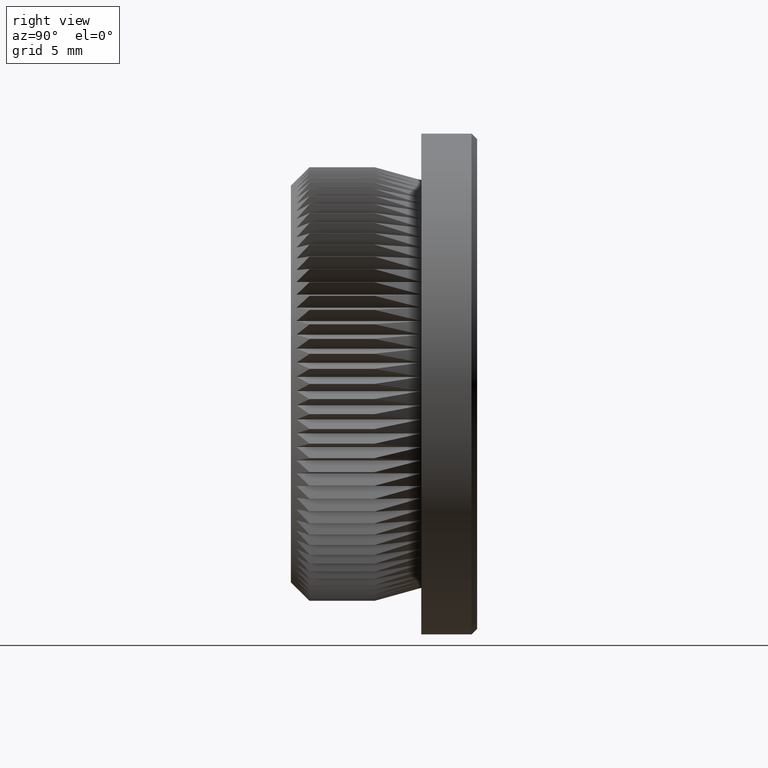
[diagram: clean part render]
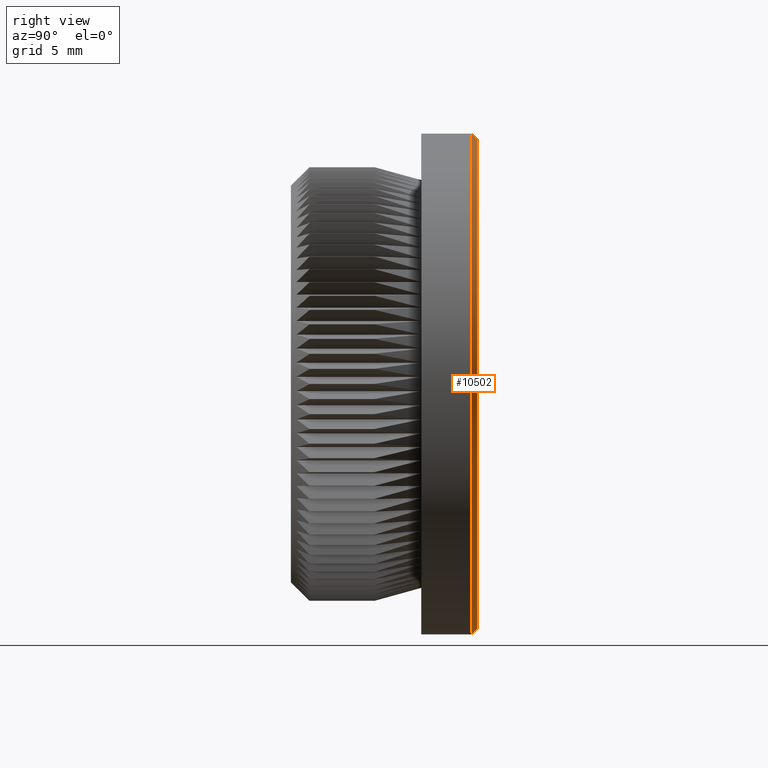
[diagram: same view with one face highlighted and labeled with its STEP entity id]
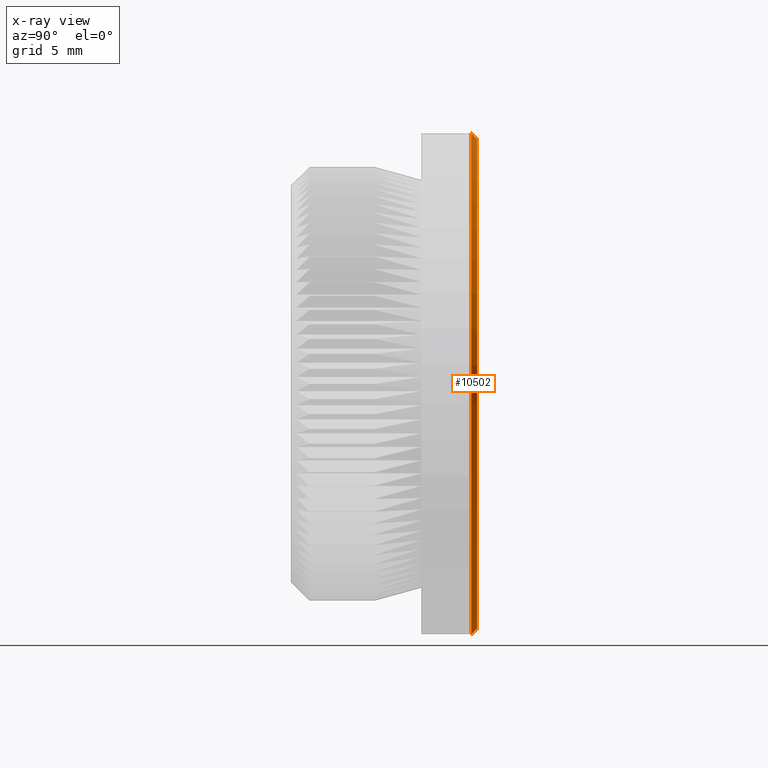
[diagram: x-ray of the same camera — body ghosted, the highlighted face saturated]
A machine part, right view. The second image highlights one B-rep face of the part: STEP entity #10502.
The next image is the same camera in x-ray: the body ghosted, the highlighted face saturated — about 0% of this face is hidden behind the body in this view.
In plain terms, the highlighted conical surface has half-angle 45 deg.
Its self-contained STEP definition (entity closure, byte-faithful):
#224 = CARTESIAN_POINT ( 'NONE',  ( 0.0000000000000000000, 9.700000000000001100, -13.44999999999999900 ) ) ;
#1142 = EDGE_LOOP ( 'NONE', ( #22753, #4435, #20428, #8085 ) ) ;
#1304 = AXIS2_PLACEMENT_3D ( 'NONE', #20173, #22222, #4269 ) ;
#1444 = LINE ( 'NONE', #19036, #14022 ) ;
#2528 = CIRCLE ( 'NONE', #24627, 13.14999999999999700 ) ;
#2640 = VERTEX_POINT ( 'NONE', #17436 ) ;
#2882 = AXIS2_PLACEMENT_3D ( 'NONE', #6649, #20205, #14298 ) ;
#3381 = CONICAL_SURFACE ( 'NONE', #1304, 13.44999999999999900, 0.7853981633974541600 ) ;
#3818 = CARTESIAN_POINT ( 'NONE',  ( 0.0000000000000000000, 9.700000000000001100, -13.44999999999999900 ) ) ;
#3979 = DIRECTION ( 'NONE',  ( 0.0000000000000000000, -0.7071067811865434600, -0.7071067811865516800 ) ) ;
#4269 = DIRECTION ( 'NONE',  ( 0.0000000000000000000, 0.0000000000000000000, -1.000000000000000000 ) ) ;
#4385 = CARTESIAN_POINT ( 'NONE',  ( 0.0000000000000000000, 10.00000000000000000, -13.14999999999999700 ) ) ;
#4435 = ORIENTED_EDGE ( 'NONE', *, *, #14415, .T. ) ;
#5082 = EDGE_CURVE ( 'NONE', #20076, #5466, #8941, .T. ) ;
#5218 = VERTEX_POINT ( 'NONE', #5635 ) ;
#5220 = EDGE_CURVE ( 'NONE', #5218, #20076, #2528, .T. ) ;
#5466 = VERTEX_POINT ( 'NONE', #3818 ) ;
#5635 = CARTESIAN_POINT ( 'NONE',  ( 1.628780242865979600E-015, 10.00000000000000000, 13.14999999999999700 ) ) ;
#6649 = CARTESIAN_POINT ( 'NONE',  ( 0.0000000000000000000, 9.700000000000001100, 0.0000000000000000000 ) ) ;
#7538 = DIRECTION ( 'NONE',  ( 0.0000000000000000000, 0.0000000000000000000, 1.000000000000000000 ) ) ;
#8085 = ORIENTED_EDGE ( 'NONE', *, *, #5082, .F. ) ;
#8941 = LINE ( 'NONE', #224, #16942 ) ;
#10502 = ADVANCED_FACE ( 'NONE', ( #12310 ), #3381, .T. ) ;
#11119 = DIRECTION ( 'NONE',  ( 8.659560562354983400E-017, -0.7071067811865434600, 0.7071067811865516800 ) ) ;
#12084 = CIRCLE ( 'NONE', #2882, 13.44999999999999900 ) ;
#12310 = FACE_OUTER_BOUND ( 'NONE', #1142, .T. ) ;
#13444 = CARTESIAN_POINT ( 'NONE',  ( 0.0000000000000000000, 10.00000000000000000, 0.0000000000000000000 ) ) ;
#13532 = DIRECTION ( 'NONE',  ( 0.0000000000000000000, 1.000000000000000000, 0.0000000000000000000 ) ) ;
#14022 = VECTOR ( 'NONE', #11119, 1000.000000000000000 ) ;
#14298 = DIRECTION ( 'NONE',  ( 0.0000000000000000000, 0.0000000000000000000, 1.000000000000000000 ) ) ;
#14415 = EDGE_CURVE ( 'NONE', #5218, #2640, #1444, .T. ) ;
#16942 = VECTOR ( 'NONE', #3979, 1000.000000000000000 ) ;
#17436 = CARTESIAN_POINT ( 'NONE',  ( 1.647149944853190000E-015, 9.700000000000001100, 13.44999999999999900 ) ) ;
#19036 = CARTESIAN_POINT ( 'NONE',  ( 1.647149944853190000E-015, 9.700000000000001100, 13.44999999999999900 ) ) ;
#20076 = VERTEX_POINT ( 'NONE', #4385 ) ;
#20173 = CARTESIAN_POINT ( 'NONE',  ( 0.0000000000000000000, 9.700000000000001100, 0.0000000000000000000 ) ) ;
#20201 = EDGE_CURVE ( 'NONE', #5466, #2640, #12084, .T. ) ;
#20205 = DIRECTION ( 'NONE',  ( -0.0000000000000000000, -1.000000000000000000, -0.0000000000000000000 ) ) ;
#20428 = ORIENTED_EDGE ( 'NONE', *, *, #20201, .F. ) ;
#22222 = DIRECTION ( 'NONE',  ( -0.0000000000000000000, -1.000000000000000000, -0.0000000000000000000 ) ) ;
#22753 = ORIENTED_EDGE ( 'NONE', *, *, #5220, .F. ) ;
#24627 = AXIS2_PLACEMENT_3D ( 'NONE', #13444, #13532, #7538 ) ;